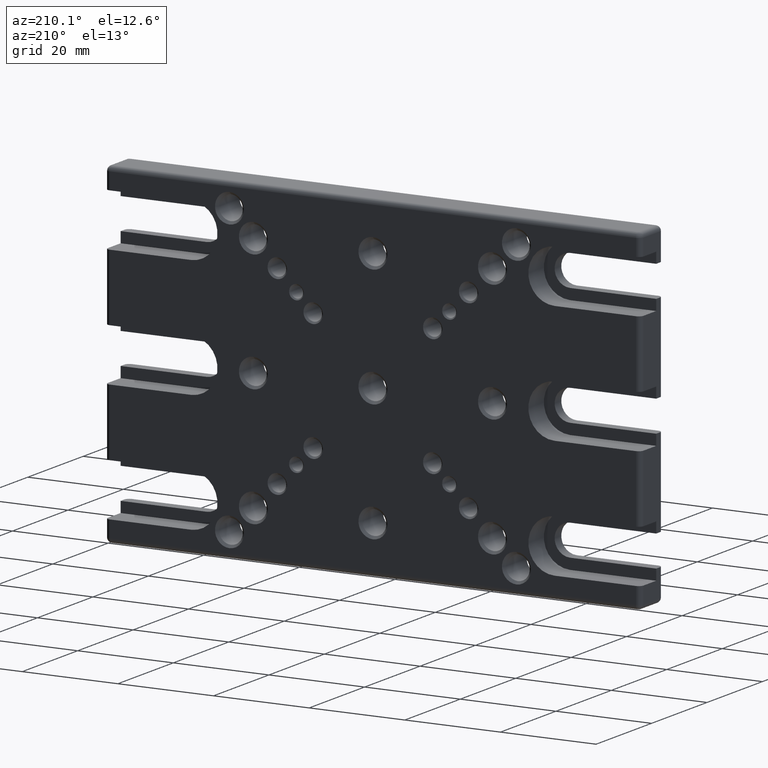
[diagram: clean part render]
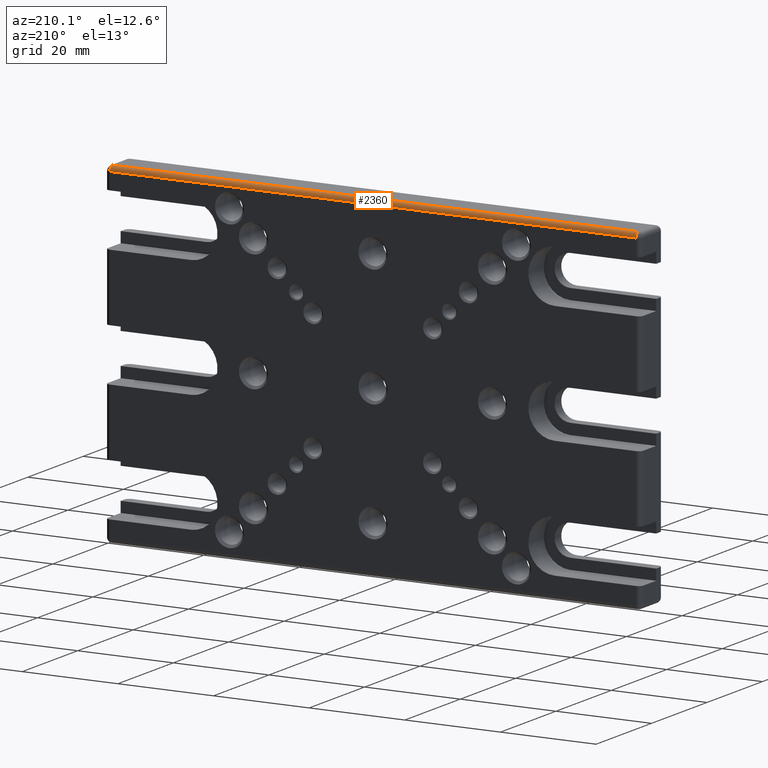
[diagram: same view with one face highlighted and labeled with its STEP entity id]
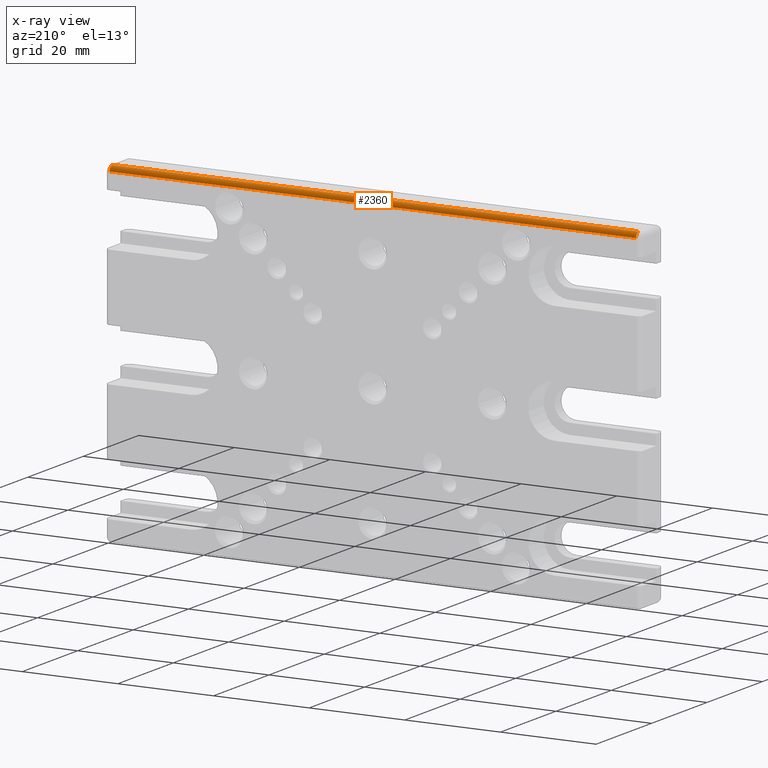
[diagram: x-ray of the same camera — body ghosted, the highlighted face saturated]
A machine part, auxiliary view. The second image highlights one B-rep face of the part: STEP entity #2360.
The next image is the same camera in x-ray: the body ghosted, the highlighted face saturated — about 0% of this face is hidden behind the body in this view.
In plain terms, the highlighted cylindrical surface (edge-blend (fillet) strip) has radius 1 mm, axis along (-1, 0, 0).
Its self-contained STEP definition (entity closure, byte-faithful):
#179 = LINE ( 'NONE', #1442, #3818 ) ;
#403 = CARTESIAN_POINT ( 'NONE',  ( 55.00000000000000000, 7.000000000000000000, 34.99999999999999289 ) ) ;
#461 = ORIENTED_EDGE ( 'NONE', *, *, #1208, .F. ) ;
#645 = AXIS2_PLACEMENT_3D ( 'NONE', #2496, #1220, #3710 ) ;
#850 = CIRCLE ( 'NONE', #3282, 1.000000000000000888 ) ;
#916 = CIRCLE ( 'NONE', #645, 1.000000000000000888 ) ;
#1045 = ORIENTED_EDGE ( 'NONE', *, *, #2950, .F. ) ;
#1047 = DIRECTION ( 'NONE',  ( -1.000000000000000000, -0.000000000000000000, -0.000000000000000000 ) ) ;
#1059 = CYLINDRICAL_SURFACE ( 'NONE', #3603, 1.000000000000000888 ) ;
#1078 = DIRECTION ( 'NONE',  ( 0.000000000000000000, 0.000000000000000000, 1.000000000000000000 ) ) ;
#1208 = EDGE_CURVE ( 'NONE', #1244, #3063, #850, .T. ) ;
#1220 = DIRECTION ( 'NONE',  ( -1.000000000000000000, 0.000000000000000000, 0.000000000000000000 ) ) ;
#1244 = VERTEX_POINT ( 'NONE', #1641 ) ;
#1409 = VERTEX_POINT ( 'NONE', #3077 ) ;
#1421 = EDGE_CURVE ( 'NONE', #1944, #1409, #916, .T. ) ;
#1442 = CARTESIAN_POINT ( 'NONE',  ( 55.00000000000000000, 8.000000000000000000, 33.99999999999999289 ) ) ;
#1641 = CARTESIAN_POINT ( 'NONE',  ( -55.00000000000000000, 7.000000000000000000, 34.99999999999999289 ) ) ;
#1691 = DIRECTION ( 'NONE',  ( 1.000000000000000000, -0.000000000000000000, 0.000000000000000000 ) ) ;
#1735 = CARTESIAN_POINT ( 'NONE',  ( -55.00000000000000000, 8.000000000000000000, 33.99999999999999289 ) ) ;
#1926 = EDGE_LOOP ( 'NONE', ( #4044, #1045, #461, #3833 ) ) ;
#1944 = VERTEX_POINT ( 'NONE', #403 ) ;
#2045 = VECTOR ( 'NONE', #1047, 1000.000000000000000 ) ;
#2229 = CARTESIAN_POINT ( 'NONE',  ( -55.00000000000000000, 7.000000000000000000, 33.99999999999999289 ) ) ;
#2360 = ADVANCED_FACE ( 'NONE', ( #3029 ), #1059, .T. ) ;
#2496 = CARTESIAN_POINT ( 'NONE',  ( 55.00000000000000000, 7.000000000000000000, 33.99999999999999289 ) ) ;
#2950 = EDGE_CURVE ( 'NONE', #3063, #1409, #179, .T. ) ;
#2952 = CARTESIAN_POINT ( 'NONE',  ( -55.00000000000000000, 7.000000000000000000, 34.99999999999999289 ) ) ;
#2963 = EDGE_CURVE ( 'NONE', #1944, #1244, #3269, .T. ) ;
#2985 = DIRECTION ( 'NONE',  ( -1.000000000000000000, 0.000000000000000000, 0.000000000000000000 ) ) ;
#3029 = FACE_OUTER_BOUND ( 'NONE', #1926, .T. ) ;
#3063 = VERTEX_POINT ( 'NONE', #1735 ) ;
#3077 = CARTESIAN_POINT ( 'NONE',  ( 55.00000000000000000, 8.000000000000000000, 33.99999999999999289 ) ) ;
#3269 = LINE ( 'NONE', #2952, #2045 ) ;
#3282 = AXIS2_PLACEMENT_3D ( 'NONE', #2229, #3487, #3446 ) ;
#3446 = DIRECTION ( 'NONE',  ( 0.000000000000000000, 0.000000000000000000, 1.000000000000000000 ) ) ;
#3487 = DIRECTION ( 'NONE',  ( -1.000000000000000000, 0.000000000000000000, 0.000000000000000000 ) ) ;
#3603 = AXIS2_PLACEMENT_3D ( 'NONE', #3922, #2985, #1078 ) ;
#3710 = DIRECTION ( 'NONE',  ( 0.000000000000000000, 0.000000000000000000, 1.000000000000000000 ) ) ;
#3818 = VECTOR ( 'NONE', #1691, 1000.000000000000000 ) ;
#3833 = ORIENTED_EDGE ( 'NONE', *, *, #2963, .F. ) ;
#3922 = CARTESIAN_POINT ( 'NONE',  ( 0.000000000000000000, 7.000000000000000000, 33.99999999999999289 ) ) ;
#4044 = ORIENTED_EDGE ( 'NONE', *, *, #1421, .T. ) ;